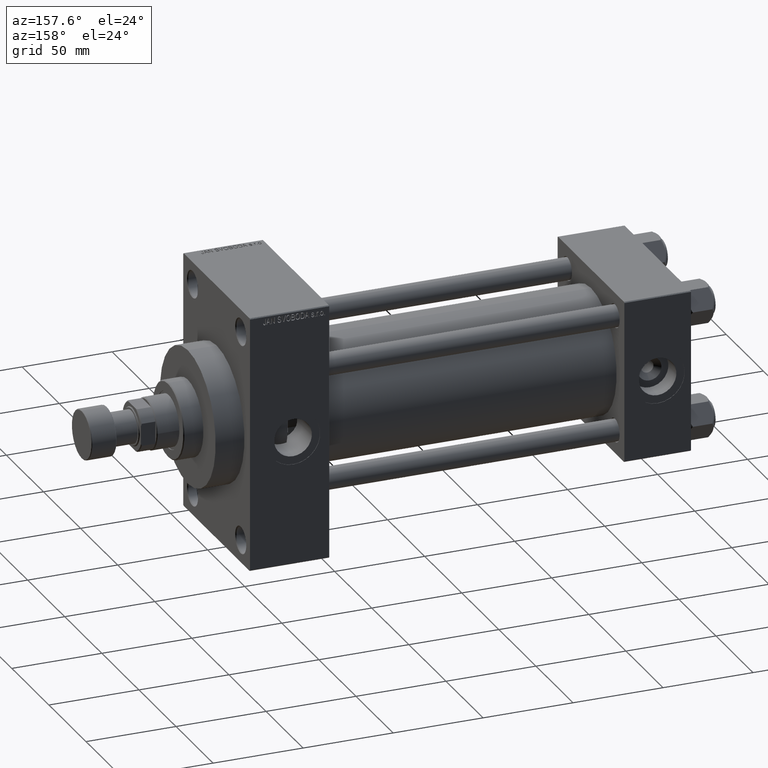
[diagram: clean part render]
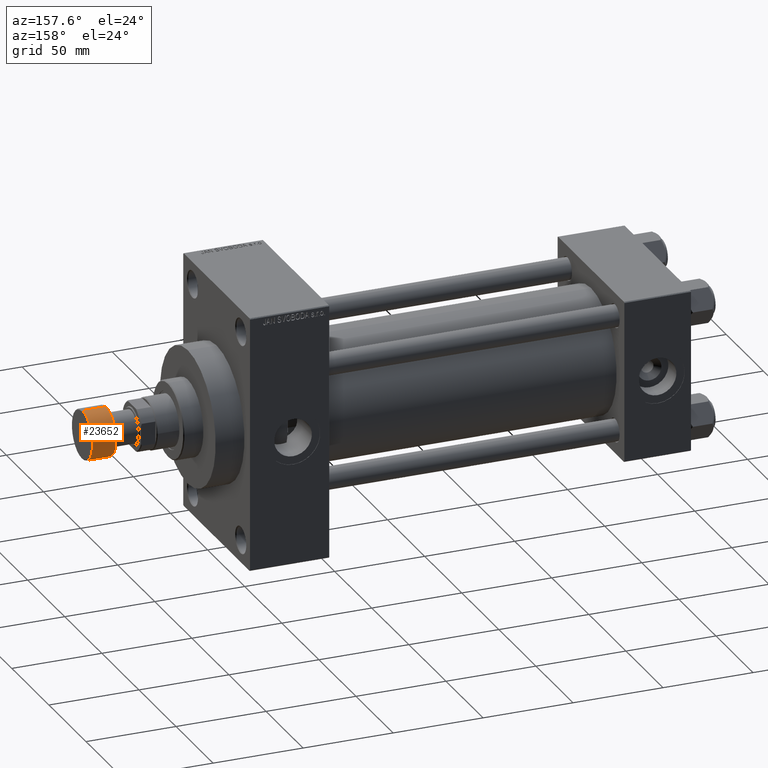
[diagram: same view with one face highlighted and labeled with its STEP entity id]
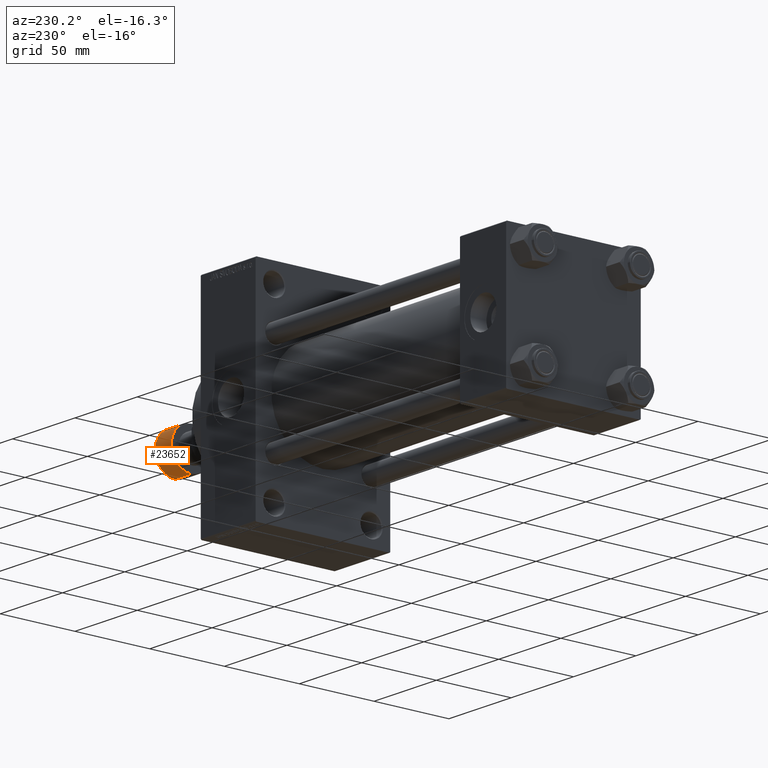
[diagram: same view with one face highlighted and labeled with its STEP entity id]
A machine part, auxiliary view. The second image highlights one B-rep face of the part: STEP entity #23652.
A second angle (auxiliary view) of the same face is appended — the face is thin or edge-on in the first view.
In plain terms, the highlighted cylindrical surface (edge-blend (fillet) strip) has radius 13.5 mm, axis along (1, 0, 0).
Its self-contained STEP definition (entity closure, byte-faithful):
#16 = LINE ( 'NONE', #29444, #4756 ) ;
#235 = VECTOR ( 'NONE', #25596, 1000.000000000000000 ) ;
#1462 = CARTESIAN_POINT ( 'NONE',  ( -13.50000000000000000, 1.653273178848926867E-15, -0.5000000000000004441 ) ) ;
#3474 = CARTESIAN_POINT ( 'NONE',  ( 0.000000000000000000, 0.000000000000000000, -0.5000000000000004441 ) ) ;
#4020 = VERTEX_POINT ( 'NONE', #7393 ) ;
#4309 = ORIENTED_EDGE ( 'NONE', *, *, #14203, .T. ) ;
#4756 = VECTOR ( 'NONE', #33305, 1000.000000000000000 ) ;
#4948 = DIRECTION ( 'NONE',  ( 0.000000000000000000, 0.000000000000000000, 1.000000000000000000 ) ) ;
#5047 = AXIS2_PLACEMENT_3D ( 'NONE', #46761, #17826, #21204 ) ;
#7393 = CARTESIAN_POINT ( 'NONE',  ( 13.50000000000000000, 0.000000000000000000, -0.5000000000000004441 ) ) ;
#9465 = AXIS2_PLACEMENT_3D ( 'NONE', #3474, #17940, #43510 ) ;
#10496 = ORIENTED_EDGE ( 'NONE', *, *, #14484, .T. ) ;
#10625 = LINE ( 'NONE', #28983, #235 ) ;
#13491 = CYLINDRICAL_SURFACE ( 'NONE', #5047, 13.50000000000000000 ) ;
#14203 = EDGE_CURVE ( 'NONE', #29338, #4020, #30272, .T. ) ;
#14484 = EDGE_CURVE ( 'NONE', #32834, #29338, #10625, .T. ) ;
#16118 = VERTEX_POINT ( 'NONE', #30973 ) ;
#17826 = DIRECTION ( 'NONE',  ( 0.000000000000000000, 0.000000000000000000, 1.000000000000000000 ) ) ;
#17940 = DIRECTION ( 'NONE',  ( -0.000000000000000000, -0.000000000000000000, -1.000000000000000000 ) ) ;
#21204 = DIRECTION ( 'NONE',  ( 1.000000000000000000, 0.000000000000000000, 0.000000000000000000 ) ) ;
#22969 = CIRCLE ( 'NONE', #29147, 13.50000000000000000 ) ;
#23652 = ADVANCED_FACE ( 'NONE', ( #25072 ), #13491, .T. ) ;
#25072 = FACE_OUTER_BOUND ( 'NONE', #25188, .T. ) ;
#25188 = EDGE_LOOP ( 'NONE', ( #38340, #10496, #4309, #36469 ) ) ;
#25596 = DIRECTION ( 'NONE',  ( 0.000000000000000000, 0.000000000000000000, 1.000000000000000000 ) ) ;
#27988 = EDGE_CURVE ( 'NONE', #16118, #32834, #22969, .T. ) ;
#28983 = CARTESIAN_POINT ( 'NONE',  ( -13.50000000000000000, 1.653273178848926867E-15, -14.00000000000000000 ) ) ;
#29147 = AXIS2_PLACEMENT_3D ( 'NONE', #30762, #4948, #34150 ) ;
#29338 = VERTEX_POINT ( 'NONE', #1462 ) ;
#29444 = CARTESIAN_POINT ( 'NONE',  ( 13.50000000000000000, 0.000000000000000000, -14.00000000000000000 ) ) ;
#30272 = CIRCLE ( 'NONE', #9465, 13.50000000000000000 ) ;
#30762 = CARTESIAN_POINT ( 'NONE',  ( 0.000000000000000000, 0.000000000000000000, -13.50000000000000000 ) ) ;
#30973 = CARTESIAN_POINT ( 'NONE',  ( 13.50000000000000000, 0.000000000000000000, -13.50000000000000000 ) ) ;
#32834 = VERTEX_POINT ( 'NONE', #33281 ) ;
#33281 = CARTESIAN_POINT ( 'NONE',  ( -13.50000000000000000, 1.653273178848926867E-15, -13.50000000000000000 ) ) ;
#33305 = DIRECTION ( 'NONE',  ( 0.000000000000000000, 0.000000000000000000, 1.000000000000000000 ) ) ;
#34150 = DIRECTION ( 'NONE',  ( 1.000000000000000000, 0.000000000000000000, 0.000000000000000000 ) ) ;
#36469 = ORIENTED_EDGE ( 'NONE', *, *, #36967, .F. ) ;
#36967 = EDGE_CURVE ( 'NONE', #16118, #4020, #16, .T. ) ;
#38340 = ORIENTED_EDGE ( 'NONE', *, *, #27988, .T. ) ;
#43510 = DIRECTION ( 'NONE',  ( 1.000000000000000000, 0.000000000000000000, 0.000000000000000000 ) ) ;
#46761 = CARTESIAN_POINT ( 'NONE',  ( 0.000000000000000000, 0.000000000000000000, -14.00000000000000000 ) ) ;